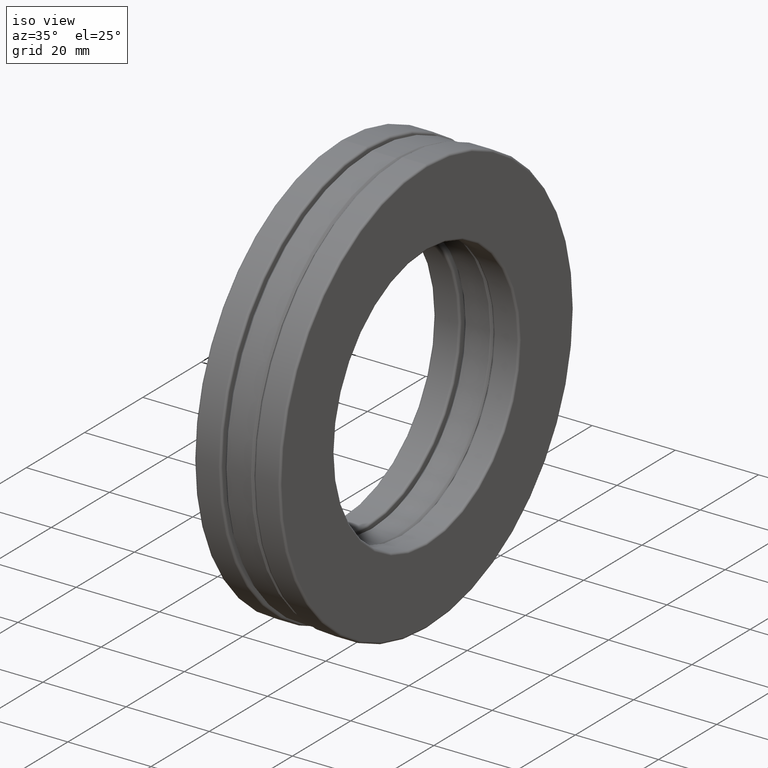
[diagram: clean part render]
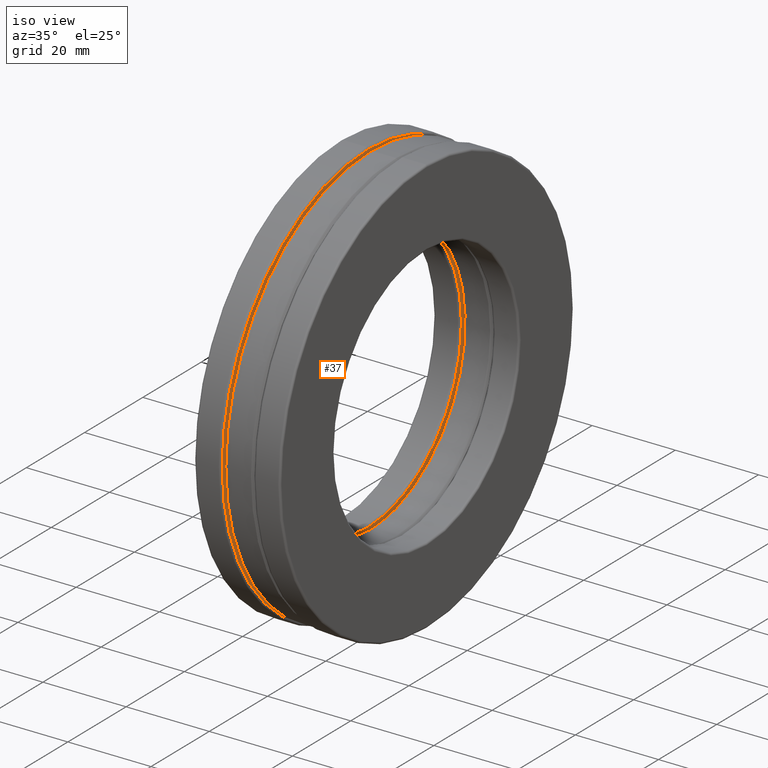
[diagram: same view with one face highlighted and labeled with its STEP entity id]
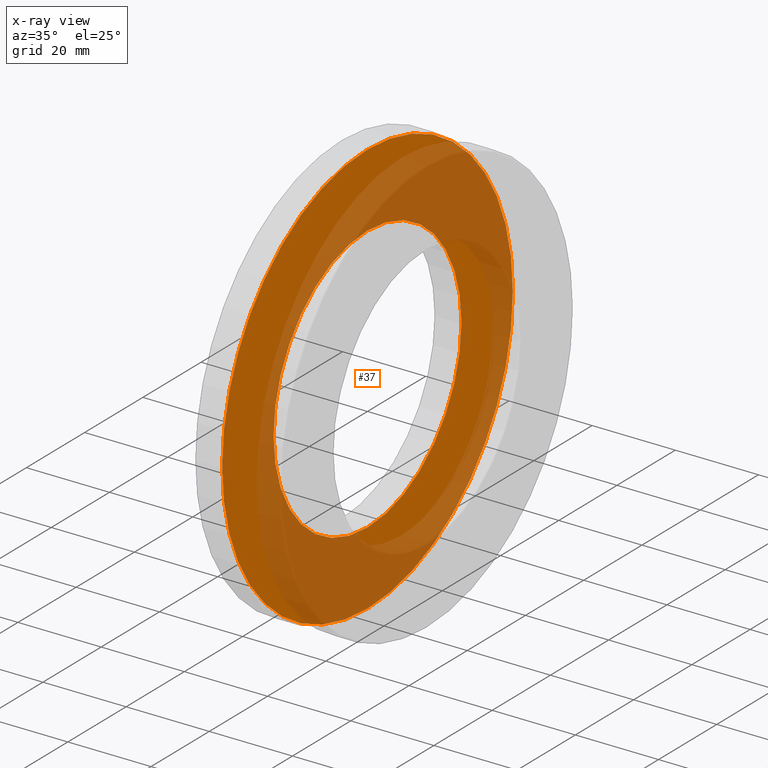
[diagram: x-ray of the same camera — body ghosted, the highlighted face saturated]
A machine part, iso view. The second image highlights one B-rep face of the part: STEP entity #37.
The next image is the same camera in x-ray: the body ghosted, the highlighted face saturated — about 54% of this face is hidden behind the body in this view.
In plain terms, the highlighted planar face has unit normal (1, 0, 0).
Its self-contained STEP definition (entity closure, byte-faithful):
#7 = DIRECTION ( 'NONE',  ( 0.0000000000000000000, 0.0000000000000000000, 1.000000000000000000 ) ) ;
#37 = ADVANCED_FACE ( 'NONE', ( #130, #620 ), #420, .T. ) ;
#130 = FACE_BOUND ( 'NONE', #971, .T. ) ;
#231 = AXIS2_PLACEMENT_3D ( 'NONE', #1441, #952, #1075 ) ;
#420 = PLANE ( 'NONE',  #594 ) ;
#427 = CARTESIAN_POINT ( 'NONE',  ( -0.1559999999999999200, 0.0000000000000000000, 1.270000000000000000 ) ) ;
#438 = CIRCLE ( 'NONE', #823, 1.270000000000000000 ) ;
#453 = CARTESIAN_POINT ( 'NONE',  ( -0.1559999999999999200, 0.0000000000000000000, 0.0000000000000000000 ) ) ;
#460 = DIRECTION ( 'NONE',  ( -1.000000000000000000, -0.0000000000000000000, -0.0000000000000000000 ) ) ;
#475 = CIRCLE ( 'NONE', #231, 1.964375000000000600 ) ;
#593 = VERTEX_POINT ( 'NONE', #778 ) ;
#594 = AXIS2_PLACEMENT_3D ( 'NONE', #1215, #1094, #785 ) ;
#620 = FACE_OUTER_BOUND ( 'NONE', #1136, .T. ) ;
#778 = CARTESIAN_POINT ( 'NONE',  ( -0.1559999999999999400, 0.0000000000000000000, 1.964375000000000600 ) ) ;
#785 = DIRECTION ( 'NONE',  ( 0.0000000000000000000, 0.0000000000000000000, -1.000000000000000000 ) ) ;
#823 = AXIS2_PLACEMENT_3D ( 'NONE', #453, #460, #7 ) ;
#952 = DIRECTION ( 'NONE',  ( -1.000000000000000000, -0.0000000000000000000, -0.0000000000000000000 ) ) ;
#971 = EDGE_LOOP ( 'NONE', ( #1322 ) ) ;
#1029 = VERTEX_POINT ( 'NONE', #427 ) ;
#1075 = DIRECTION ( 'NONE',  ( 0.0000000000000000000, 0.0000000000000000000, 1.000000000000000000 ) ) ;
#1094 = DIRECTION ( 'NONE',  ( 1.000000000000000000, 0.0000000000000000000, 0.0000000000000000000 ) ) ;
#1095 = ORIENTED_EDGE ( 'NONE', *, *, #1129, .F. ) ;
#1129 = EDGE_CURVE ( 'NONE', #593, #593, #475, .T. ) ;
#1136 = EDGE_LOOP ( 'NONE', ( #1095 ) ) ;
#1143 = EDGE_CURVE ( 'NONE', #1029, #1029, #438, .T. ) ;
#1215 = CARTESIAN_POINT ( 'NONE',  ( -0.1559999999999999200, -7.671796345843823700E-018, 0.0000000000000000000 ) ) ;
#1322 = ORIENTED_EDGE ( 'NONE', *, *, #1143, .T. ) ;
#1441 = CARTESIAN_POINT ( 'NONE',  ( -0.1559999999999999400, 0.0000000000000000000, 0.0000000000000000000 ) ) ;